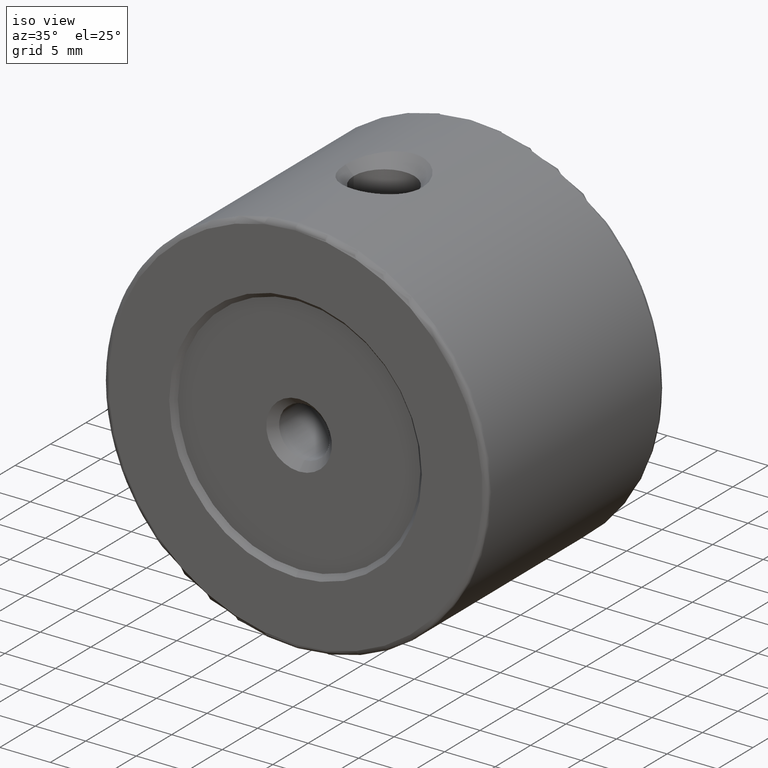
[diagram: clean part render]
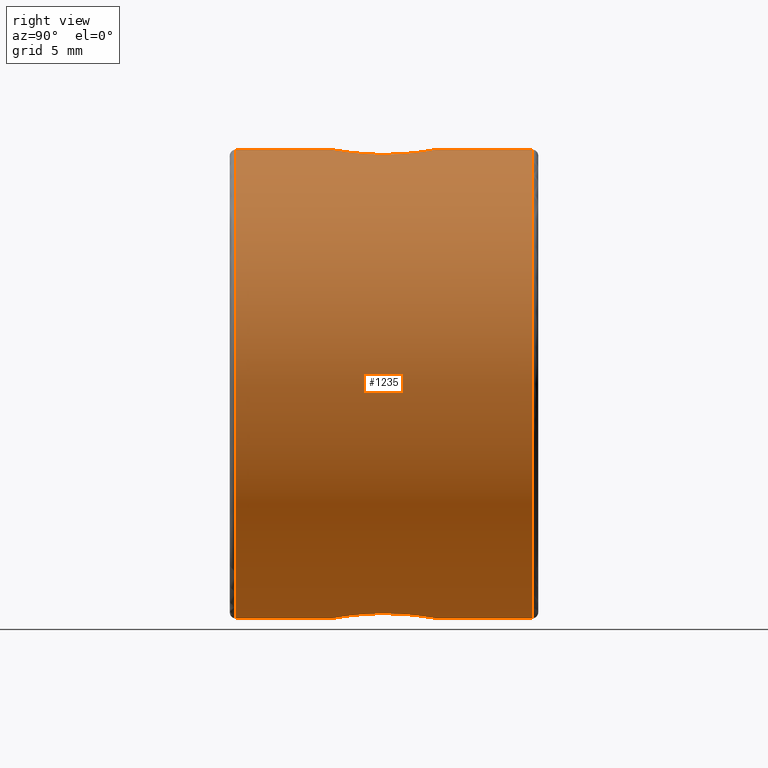
[diagram: tour spotlight — one face highlighted and labeled with its STEP entity id]
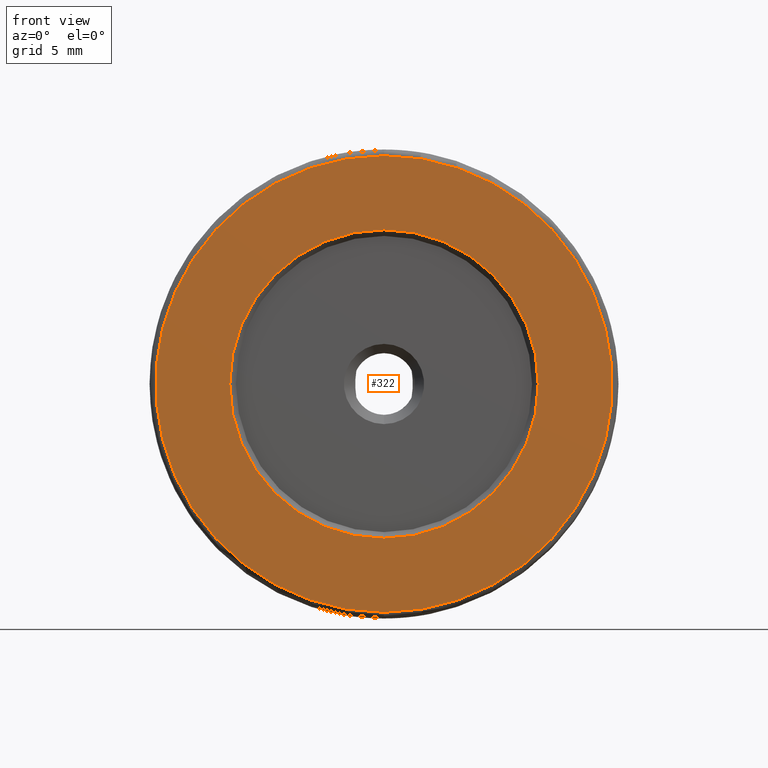
[diagram: tour spotlight — one face highlighted and labeled with its STEP entity id]
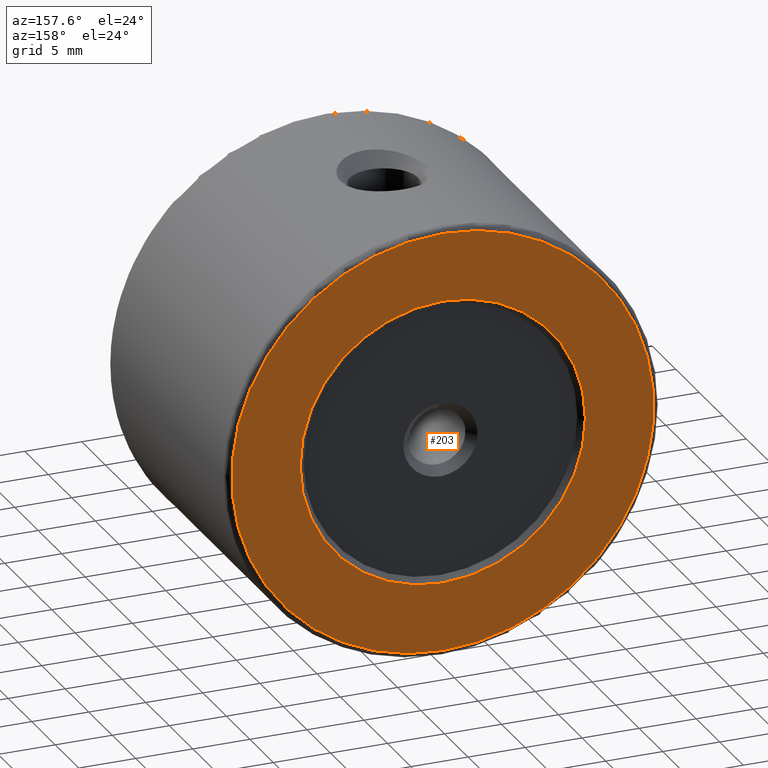
[diagram: tour spotlight — one face highlighted and labeled with its STEP entity id]
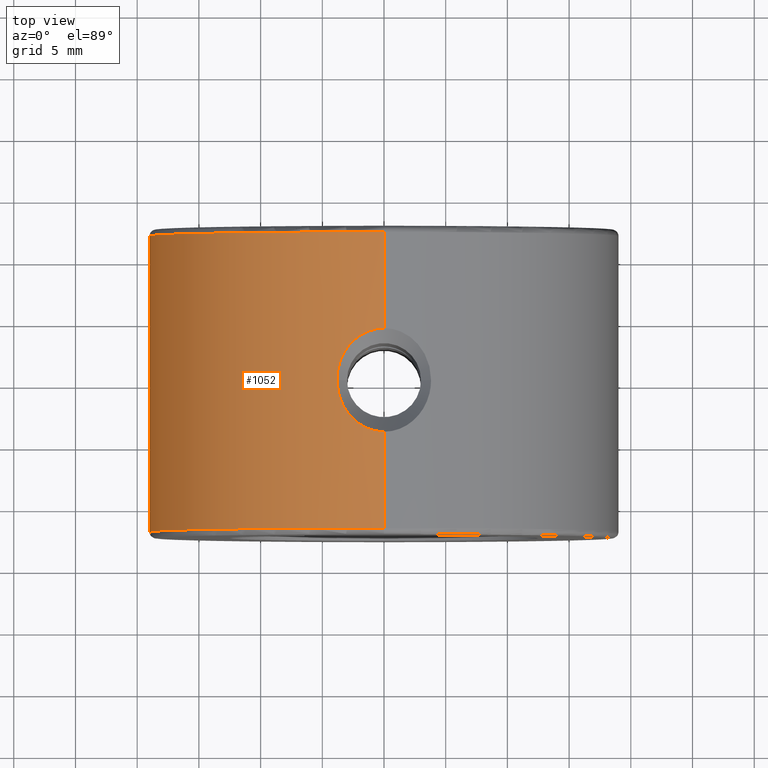
[diagram: tour spotlight — one face highlighted and labeled with its STEP entity id]
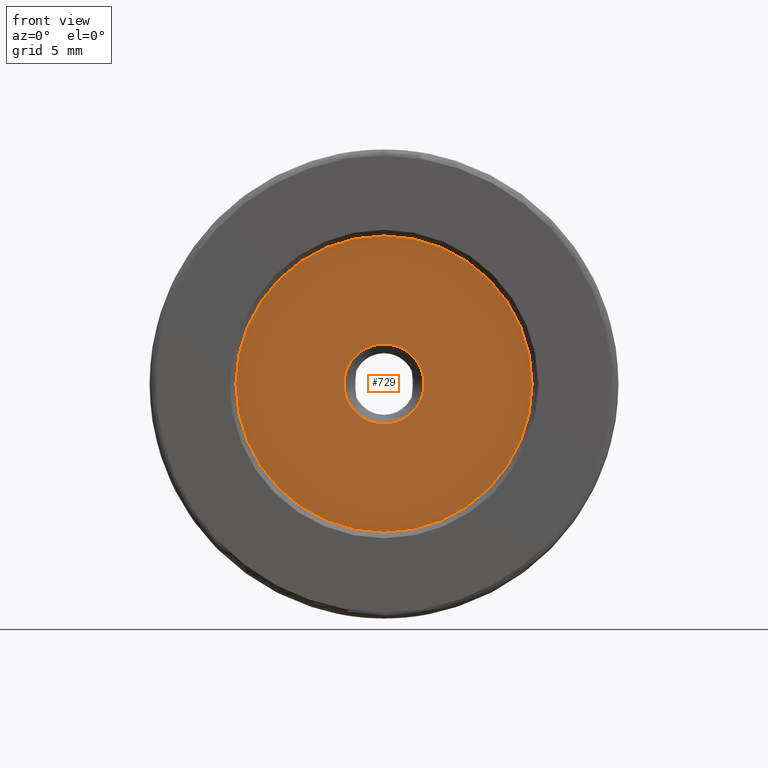
[diagram: tour spotlight — one face highlighted and labeled with its STEP entity id]
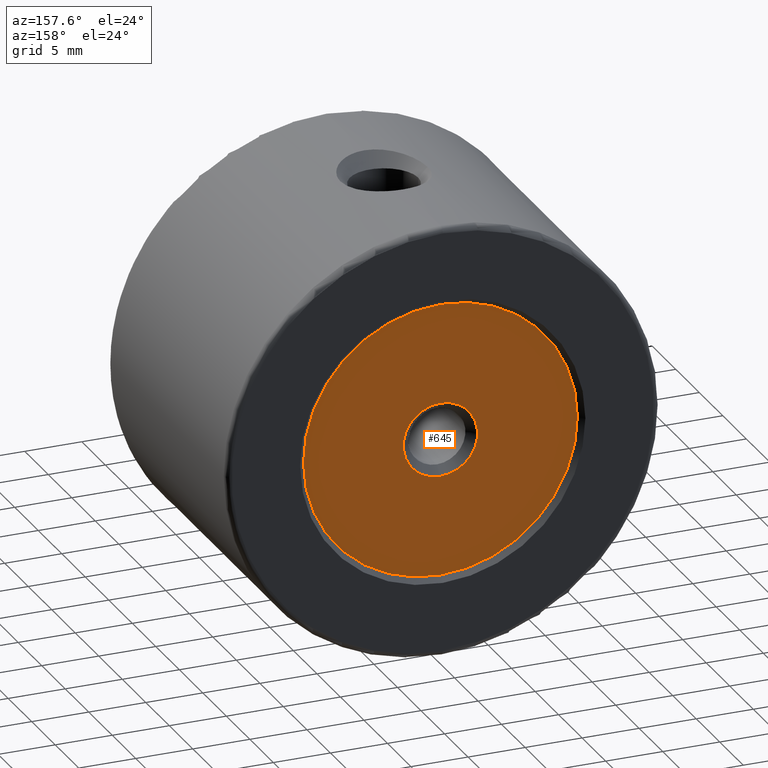
[diagram: tour spotlight — one face highlighted and labeled with its STEP entity id]
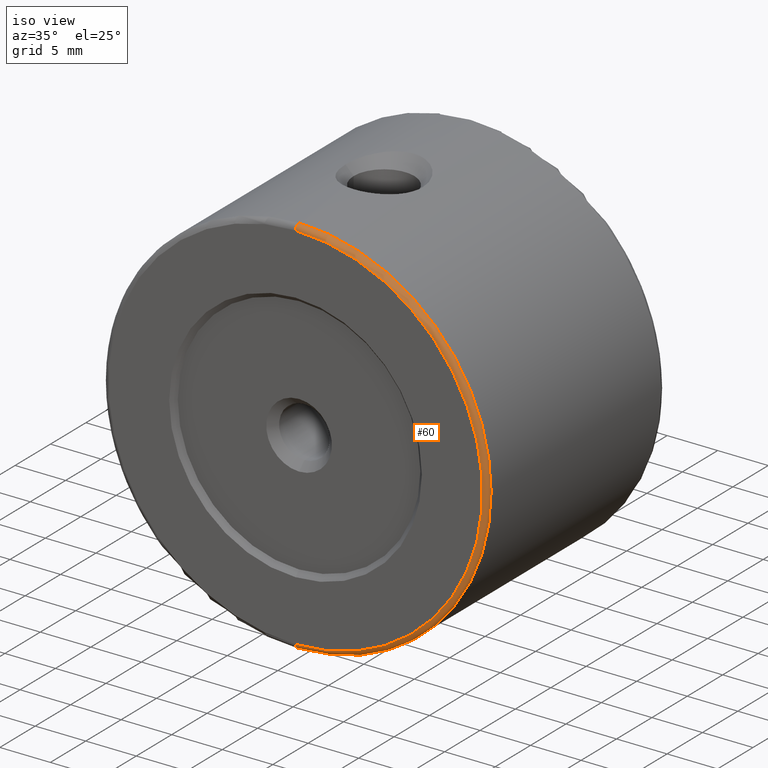
[diagram: tour spotlight — one face highlighted and labeled with its STEP entity id]
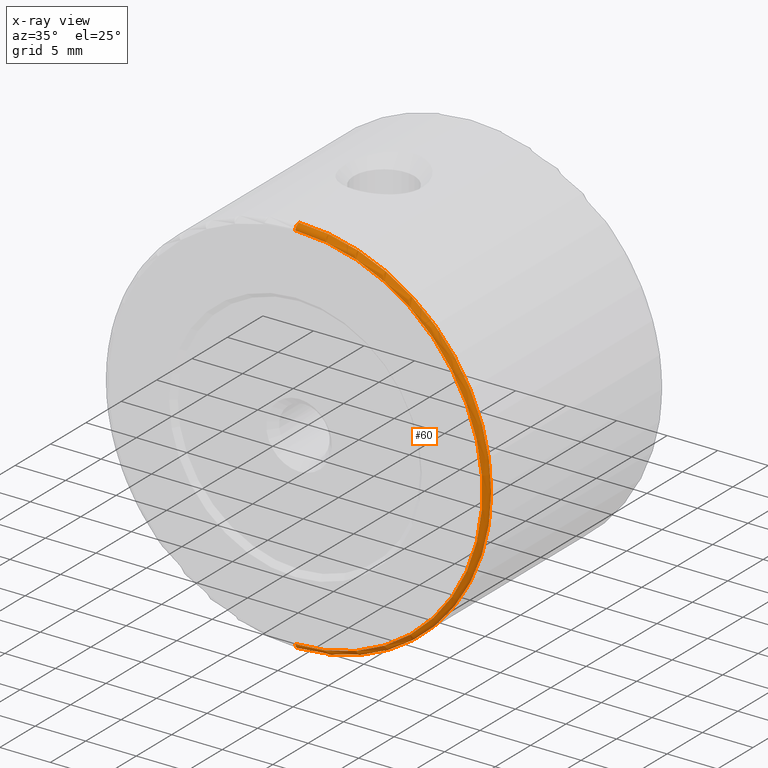
[diagram: x-ray of the same camera — body ghosted, this tour face saturated]
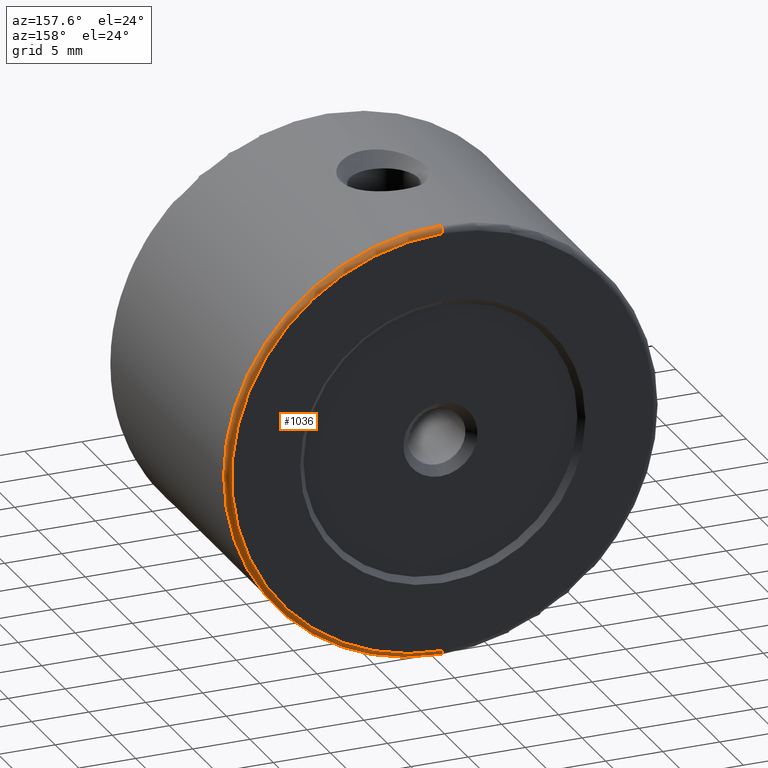
[diagram: tour spotlight — one face highlighted and labeled with its STEP entity id]
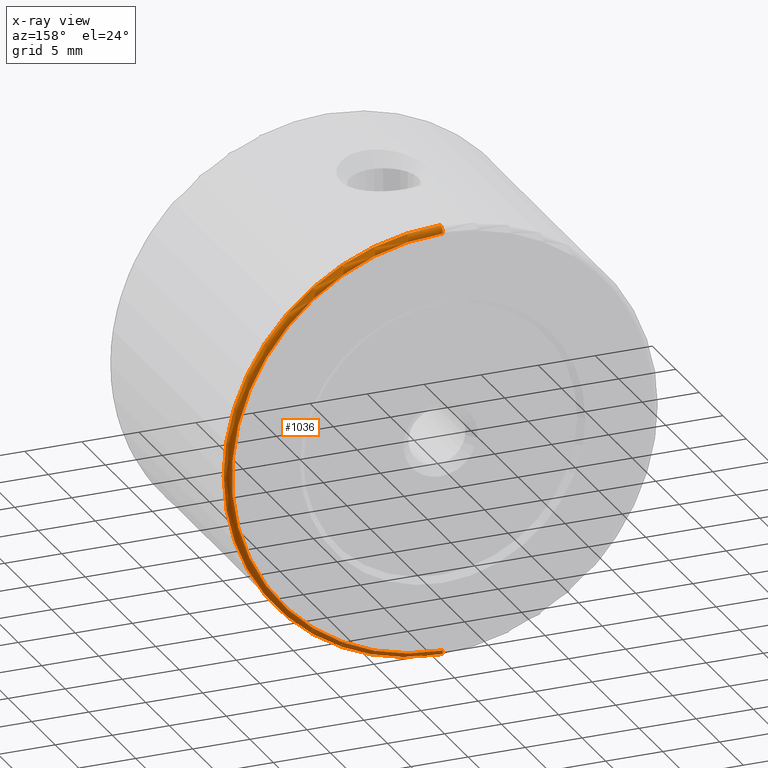
[diagram: x-ray of the same camera — body ghosted, this tour face saturated]
A machine part: a face-by-face anatomy tour. The part has 32 B-rep faces; the first image is the clean iso view, then the 8 largest visible faces are spotlighted one at a time (largest first), each with its STEP entity span.

Face 1 — right view, entity #1235. In plain terms, the highlighted cylindrical surface (partial cylindrical patch) has radius 19 mm, axis along (-0, -1, -0).
Definition (entity closure, byte-faithful):
#2 = CARTESIAN_POINT ( 'NONE',  ( -2.950931431205499911E-24, 4.200000000000001954, -19.00000000000000000 ) ) ;
#15 = CIRCLE ( 'NONE', #152, 19.00000000000000000 ) ;
#21 = FACE_OUTER_BOUND ( 'NONE', #573, .T. ) ;
#28 = CARTESIAN_POINT ( 'NONE',  ( 0.000000000000000000, 12.50000000000000000, -19.00000000000000000 ) ) ;
#40 = LINE ( 'NONE', #1194, #607 ) ;
#41 = CARTESIAN_POINT ( 'NONE',  ( 3.813384859176113029, 4.485534213115403575E-15, 18.61338485917610797 ) ) ;
#51 = CARTESIAN_POINT ( 'NONE',  ( 2.585923145783153743, 3.094283374167721590, -18.82401197115958880 ) ) ;
#80 = VERTEX_POINT ( 'NONE', #877 ) ;
#90 = CARTESIAN_POINT ( 'NONE',  ( 0.5297251651310073139, 4.168942290521563621, 18.99432574091556702 ) ) ;
#101 = DIRECTION ( 'NONE',  ( 0.000000000000000000, 0.000000000000000000, 1.000000000000000000 ) ) ;
#106 = CARTESIAN_POINT ( 'NONE',  ( 3.813384859176113029, 4.485534213115403575E-15, 18.61338485917610797 ) ) ;
#110 = CARTESIAN_POINT ( 'NONE',  ( 1.036936331074847395, -4.050975714897528945, -18.97339883011098038 ) ) ;
#124 = CARTESIAN_POINT ( 'NONE',  ( 3.813384859176113029, 5.419544116105100798E-15, -18.61338485917610797 ) ) ;
#135 = CARTESIAN_POINT ( 'NONE',  ( 0.000000000000000000, 12.00000000000000000, -19.00000000000000000 ) ) ;
#152 = AXIS2_PLACEMENT_3D ( 'NONE', #487, #389, #767 ) ;
#159 = CARTESIAN_POINT ( 'NONE',  ( 0.2643608118935061313, -4.200000000000002842, 19.00000000000000000 ) ) ;
#163 = CARTESIAN_POINT ( 'NONE',  ( 1.285606211179417757, 3.962995433463190942, -18.95795995441477899 ) ) ;
#165 = CARTESIAN_POINT ( 'NONE',  ( 3.083702293731566790, -2.479907480587627333, 18.74856035406340027 ) ) ;
#181 = CARTESIAN_POINT ( 'NONE',  ( 3.343440295387148264, 2.032195604094981345, 18.70398410746842188 ) ) ;
#184 = B_SPLINE_CURVE_WITH_KNOTS ( 'NONE', 3,
 ( #239, #159, #540, #824, #1189, #245, #1209, #720, #359, #1099, #165, #737, #1117, #1003, #930, #934, #1234, #106 ),
 .UNSPECIFIED., .F., .F.,
 ( 4, 2, 2, 2, 2, 2, 2, 2, 4 ),
 ( 0.003733624680294761987, 0.004520577988407363350, 0.005307531296519965580, 0.006094484604632566943, 0.006881437912745168306, 0.007668391220857769669, 0.008455344528970371032, 0.009242297837082972395, 0.01002925114519557376 ),
 .UNSPECIFIED. ) ;
#187 = B_SPLINE_CURVE_WITH_KNOTS ( 'NONE', 3,
 ( #856, #590, #580, #110, #1075, #221, #596, #403, #1156, #862, #960, #773, #1063, #977, #208, #870, #691, #1149 ),
 .UNSPECIFIED., .F., .F.,
 ( 4, 2, 2, 2, 2, 2, 2, 2, 4 ),
 ( 0.003733624680294759385, 0.004520577988407360748, 0.005307531296519962978, 0.006094484604632565208, 0.006881437912745166571, 0.007668391220857767934, 0.008455344528970371032, 0.009242297837082972395, 0.01002925114519557376 ),
 .UNSPECIFIED. ) ;
#208 = CARTESIAN_POINT ( 'NONE',  ( 3.701715367238866516, -1.039379487135364544, -18.63596989500373979 ) ) ;
#221 = CARTESIAN_POINT ( 'NONE',  ( 1.760538767150908734, -3.733767648488993007, -18.91973886890871981 ) ) ;
#239 = CARTESIAN_POINT ( 'NONE',  ( 2.327192720628906891E-15, -4.200000000000001954, 19.00000000000000000 ) ) ;
#243 = DIRECTION ( 'NONE',  ( -0.000000000000000000, -1.000000000000000000, -0.000000000000000000 ) ) ;
#245 = CARTESIAN_POINT ( 'NONE',  ( 1.760538767150910289, -3.733767648488993007, 18.91973886890871981 ) ) ;
#249 = CARTESIAN_POINT ( 'NONE',  ( 3.813384859176109476, 0.2637535071253301888, -18.61338485917610797 ) ) ;
#275 = CARTESIAN_POINT ( 'NONE',  ( 1.039267146753942050, 4.050236967509066588, 18.97326916744340153 ) ) ;
#285 = CARTESIAN_POINT ( 'NONE',  ( 0.000000000000000000, 12.50000000000000000, -19.00000000000000000 ) ) ;
#287 = CARTESIAN_POINT ( 'NONE',  ( 2.326828915429219399E-15, 4.200000000000001954, 19.00000000000000000 ) ) ;
#296 = CARTESIAN_POINT ( 'NONE',  ( 0.5297251651310057596, 4.168942290521564509, -18.99432574091556702 ) ) ;
#303 = LINE ( 'NONE', #28, #584 ) ;
#333 = CARTESIAN_POINT ( 'NONE',  ( 3.700672096661099975, 1.043841190092561932, -18.63617772534706063 ) ) ;
#346 = CARTESIAN_POINT ( 'NONE',  ( 3.790400455729970197, 0.5285259653674447833, -18.61813520637687702 ) ) ;
#359 = CARTESIAN_POINT ( 'NONE',  ( 2.588654675285174900, -3.091255685942118969, 18.82361915243649619 ) ) ;
#363 = DIRECTION ( 'NONE',  ( -0.000000000000000000, -1.000000000000000000, -0.000000000000000000 ) ) ;
#379 = CARTESIAN_POINT ( 'NONE',  ( 1.984799961420630865, 3.593673160863855021, 18.89717870099241637 ) ) ;
#389 = DIRECTION ( 'NONE',  ( -0.000000000000000000, -1.000000000000000000, -0.000000000000000000 ) ) ;
#395 = VERTEX_POINT ( 'NONE', #458 ) ;
#403 = CARTESIAN_POINT ( 'NONE',  ( 2.399224342550098310, -3.272267847369860760, -18.84907799735164957 ) ) ;
#408 = CARTESIAN_POINT ( 'NONE',  ( 0.000000000000000000, 12.50000000000000000, 0.000000000000000000 ) ) ;
#438 = CARTESIAN_POINT ( 'NONE',  ( 3.638011419842106990E-19, -4.200000000000001954, -19.00000000000000000 ) ) ;
#455 = ORIENTED_EDGE ( 'NONE', *, *, #837, .F. ) ;
#457 = CARTESIAN_POINT ( 'NONE',  ( 3.081823001859030686, 2.482585514589404685, 18.74886613868855534 ) ) ;
#458 = CARTESIAN_POINT ( 'NONE',  ( 2.326828918379970970E-15, 12.00000000000000000, 19.00000000000000000 ) ) ;
#464 = ORIENTED_EDGE ( 'NONE', *, *, #981, .F. ) ;
#473 = CARTESIAN_POINT ( 'NONE',  ( 2.395774678546571668, 3.275000908284720680, 18.84948427500687984 ) ) ;
#487 = CARTESIAN_POINT ( 'NONE',  ( 0.000000000000000000, 12.00000000000000000, 0.000000000000000000 ) ) ;
#494 = LINE ( 'NONE', #693, #863 ) ;
#523 = CARTESIAN_POINT ( 'NONE',  ( 3.343440295387147376, 2.032195604094981345, -18.70398410746841478 ) ) ;
#532 = CARTESIAN_POINT ( 'NONE',  ( 3.454920106575096739, 1.792778621141402740, -18.68346417454709041 ) ) ;
#533 = AXIS2_PLACEMENT_3D ( 'NONE', #408, #1093, #604 ) ;
#534 = VERTEX_POINT ( 'NONE', #41 ) ;
#539 = ORIENTED_EDGE ( 'NONE', *, *, #778, .F. ) ;
#540 = CARTESIAN_POINT ( 'NONE',  ( 0.5270742247394939461, -4.169362194566524238, 18.99440161949765837 ) ) ;
#550 = VECTOR ( 'NONE', #363, 1000.000000000000000 ) ;
#558 = CARTESIAN_POINT ( 'NONE',  ( 1.285606211179420866, 3.962995433463188277, 18.95795995441477544 ) ) ;
#563 = ORIENTED_EDGE ( 'NONE', *, *, #649, .F. ) ;
#564 = CARTESIAN_POINT ( 'NONE',  ( 3.790400455729969753, 0.5285259653674447833, 18.61813520637686992 ) ) ;
#566 = CARTESIAN_POINT ( 'NONE',  ( 0.000000000000000000, -12.00000000000000000, 0.000000000000000000 ) ) ;
#573 = EDGE_LOOP ( 'NONE', ( #851, #1005, #539, #563, #840, #946, #455, #1219, #1011, #464 ) ) ;
#578 = CARTESIAN_POINT ( 'NONE',  ( 1.039267146753940940, 4.050236967509067476, -18.97326916744340863 ) ) ;
#580 = CARTESIAN_POINT ( 'NONE',  ( 0.5270742247394912816, -4.169362194566525126, -18.99440161949765837 ) ) ;
#584 = VECTOR ( 'NONE', #597, 1000.000000000000000 ) ;
#590 = CARTESIAN_POINT ( 'NONE',  ( 0.2643608118935036888, -4.200000000000005507, -19.00000000000000000 ) ) ;
#596 = CARTESIAN_POINT ( 'NONE',  ( 1.982410025684199217, -3.595584354445326536, -18.89746198001725119 ) ) ;
#597 = DIRECTION ( 'NONE',  ( -0.000000000000000000, -1.000000000000000000, -0.000000000000000000 ) ) ;
#604 = DIRECTION ( 'NONE',  ( 0.000000000000000000, 0.000000000000000000, -1.000000000000000000 ) ) ;
#607 = VECTOR ( 'NONE', #243, 1000.000000000000000 ) ;
#611 = CARTESIAN_POINT ( 'NONE',  ( 2.395774678546570335, 3.275000908284722456, -18.84948427500687984 ) ) ;
#619 = VERTEX_POINT ( 'NONE', #438 ) ;
#624 = VERTEX_POINT ( 'NONE', #1092 ) ;
#649 = EDGE_CURVE ( 'NONE', #624, #534, #184, .T. ) ;
#661 = CARTESIAN_POINT ( 'NONE',  ( 2.585923145783155519, 3.094283374167720702, 18.82401197115958880 ) ) ;
#666 = LINE ( 'NONE', #285, #550 ) ;
#682 = CARTESIAN_POINT ( 'NONE',  ( -2.950931431205499911E-24, 4.200000000000001954, -19.00000000000000000 ) ) ;
#691 = CARTESIAN_POINT ( 'NONE',  ( 3.813384859176109920, -0.2633610886248726191, -18.61338485917610797 ) ) ;
#693 = CARTESIAN_POINT ( 'NONE',  ( 2.326828918379970970E-15, 12.50000000000000000, 19.00000000000000000 ) ) ;
#713 = CIRCLE ( 'NONE', #1130, 19.00000000000000000 ) ;
#720 = CARTESIAN_POINT ( 'NONE',  ( 2.399224342550100086, -3.272267847369859428, 18.84907799735164957 ) ) ;
#737 = CARTESIAN_POINT ( 'NONE',  ( 3.346208697011582522, -2.026862408214944011, 18.70349225525456660 ) ) ;
#739 = VERTEX_POINT ( 'NONE', #2 ) ;
#746 = CARTESIAN_POINT ( 'NONE',  ( 1.761682783616111525, 3.733302896690662731, 18.91965916007284676 ) ) ;
#754 = CARTESIAN_POINT ( 'NONE',  ( 0.2628673456869811131, 4.200000000000004619, 19.00000000000000711 ) ) ;
#760 = CARTESIAN_POINT ( 'NONE',  ( 3.813384859176113029, 4.485534213115403575E-15, 18.61338485917610797 ) ) ;
#767 = DIRECTION ( 'NONE',  ( 0.000000000000000000, 0.000000000000000000, 1.000000000000000000 ) ) ;
#773 = CARTESIAN_POINT ( 'NONE',  ( 3.346208697011582522, -2.026862408214944899, -18.70349225525456660 ) ) ;
#778 = EDGE_CURVE ( 'NONE', #534, #857, #1136, .T. ) ;
#796 = EDGE_CURVE ( 'NONE', #395, #857, #494, .T. ) ;
#801 = VERTEX_POINT ( 'NONE', #124 ) ;
#824 = CARTESIAN_POINT ( 'NONE',  ( 1.036936331074850282, -4.050975714897528945, 18.97339883011098038 ) ) ;
#837 = EDGE_CURVE ( 'NONE', #619, #896, #303, .T. ) ;
#838 = CARTESIAN_POINT ( 'NONE',  ( 2.931083331247327894, 2.695418981420047988, 18.77336346293708047 ) ) ;
#840 = ORIENTED_EDGE ( 'NONE', *, *, #952, .T. ) ;
#851 = ORIENTED_EDGE ( 'NONE', *, *, #915, .T. ) ;
#856 = CARTESIAN_POINT ( 'NONE',  ( 3.638011419842106990E-19, -4.200000000000001954, -19.00000000000000000 ) ) ;
#857 = VERTEX_POINT ( 'NONE', #874 ) ;
#862 = CARTESIAN_POINT ( 'NONE',  ( 2.930081690025328367, -2.696446970008287369, -18.77350239869024406 ) ) ;
#863 = VECTOR ( 'NONE', #1070, 1000.000000000000000 ) ;
#870 = CARTESIAN_POINT ( 'NONE',  ( 3.790936155022186504, -0.5238923155904026130, -18.61802550369087328 ) ) ;
#874 = CARTESIAN_POINT ( 'NONE',  ( 2.326828915429219399E-15, 4.200000000000001954, 19.00000000000000000 ) ) ;
#877 = CARTESIAN_POINT ( 'NONE',  ( 2.326828918379970970E-15, -12.00000000000000000, 19.00000000000000000 ) ) ;
#879 = CARTESIAN_POINT ( 'NONE',  ( 3.813384859176113029, 5.419544116105100798E-15, -18.61338485917610797 ) ) ;
#896 = VERTEX_POINT ( 'NONE', #1158 ) ;
#902 = CARTESIAN_POINT ( 'NONE',  ( 1.984799961420629977, 3.593673160863856797, -18.89717870099241992 ) ) ;
#914 = VERTEX_POINT ( 'NONE', #135 ) ;
#915 = EDGE_CURVE ( 'NONE', #914, #395, #15, .T. ) ;
#916 = CARTESIAN_POINT ( 'NONE',  ( 1.761682783616107750, 3.733302896690664952, -18.91965916007284321 ) ) ;
#930 = CARTESIAN_POINT ( 'NONE',  ( 3.701715367238866516, -1.039379487135364544, 18.63596989500373979 ) ) ;
#934 = CARTESIAN_POINT ( 'NONE',  ( 3.790936155022186504, -0.5238923155904023909, 18.61802550369087328 ) ) ;
#937 = CARTESIAN_POINT ( 'NONE',  ( 0.2628673456869778935, 4.200000000000003730, -19.00000000000000355 ) ) ;
#946 = ORIENTED_EDGE ( 'NONE', *, *, #1116, .T. ) ;
#952 = EDGE_CURVE ( 'NONE', #624, #80, #40, .T. ) ;
#960 = CARTESIAN_POINT ( 'NONE',  ( 3.083702293731565458, -2.479907480587628665, -18.74856035406340027 ) ) ;
#977 = CARTESIAN_POINT ( 'NONE',  ( 3.633941105795898352, -1.296681371469082800, -18.64946851498529767 ) ) ;
#981 = EDGE_CURVE ( 'NONE', #914, #739, #666, .T. ) ;
#1003 = CARTESIAN_POINT ( 'NONE',  ( 3.633941105795898352, -1.296681371469082800, 18.64946851498529767 ) ) ;
#1005 = ORIENTED_EDGE ( 'NONE', *, *, #796, .T. ) ;
#1011 = ORIENTED_EDGE ( 'NONE', *, *, #1038, .T. ) ;
#1012 = CARTESIAN_POINT ( 'NONE',  ( 3.081823001859029798, 2.482585514589403797, -18.74886613868855889 ) ) ;
#1013 = EDGE_CURVE ( 'NONE', #619, #801, #187, .T. ) ;
#1038 = EDGE_CURVE ( 'NONE', #801, #739, #1201, .T. ) ;
#1040 = CARTESIAN_POINT ( 'NONE',  ( 3.454920106575097627, 1.792778621141403850, 18.68346417454709041 ) ) ;
#1063 = CARTESIAN_POINT ( 'NONE',  ( 3.455971796308063837, -1.790118321469071461, -18.68326691975855880 ) ) ;
#1070 = DIRECTION ( 'NONE',  ( -0.000000000000000000, -1.000000000000000000, -0.000000000000000000 ) ) ;
#1075 = CARTESIAN_POINT ( 'NONE',  ( 1.288712811842474215, -3.961583432246448933, -18.95772230271689551 ) ) ;
#1084 = CYLINDRICAL_SURFACE ( 'NONE', #533, 19.00000000000000000 ) ;
#1087 = CARTESIAN_POINT ( 'NONE',  ( 2.931083331247326118, 2.695418981420049320, -18.77336346293708047 ) ) ;
#1092 = CARTESIAN_POINT ( 'NONE',  ( 2.327192720628906891E-15, -4.200000000000001954, 19.00000000000000000 ) ) ;
#1093 = DIRECTION ( 'NONE',  ( -0.000000000000000000, -1.000000000000000000, -0.000000000000000000 ) ) ;
#1099 = CARTESIAN_POINT ( 'NONE',  ( 2.930081690025330143, -2.696446970008286925, 18.77350239869024406 ) ) ;
#1116 = EDGE_CURVE ( 'NONE', #80, #896, #713, .T. ) ;
#1117 = CARTESIAN_POINT ( 'NONE',  ( 3.455971796308064281, -1.790118321469071239, 18.68326691975855880 ) ) ;
#1120 = DIRECTION ( 'NONE',  ( 0.000000000000000000, 1.000000000000000000, 0.000000000000000000 ) ) ;
#1130 = AXIS2_PLACEMENT_3D ( 'NONE', #566, #1120, #101 ) ;
#1132 = CARTESIAN_POINT ( 'NONE',  ( 3.700672096661099975, 1.043841190092562154, 18.63617772534706063 ) ) ;
#1136 = B_SPLINE_CURVE_WITH_KNOTS ( 'NONE', 3,
 ( #760, #1143, #564, #1132, #1221, #1040, #181, #457, #838, #661, #473, #379, #746, #558, #275, #90, #754, #287 ),
 .UNSPECIFIED., .F., .F.,
 ( 4, 2, 2, 2, 2, 2, 2, 2, 4 ),
 ( 0.01002925114519557376, 0.01081737704504791633, 0.01160550294490025891, 0.01239362884475260149, 0.01318175474460494580, 0.01396988064445728837, 0.01475800654430963095, 0.01554613244416197179, 0.01633425834401431437 ),
 .UNSPECIFIED. ) ;
#1143 = CARTESIAN_POINT ( 'NONE',  ( 3.813384859176109920, 0.2637535071253300223, 18.61338485917610797 ) ) ;
#1149 = CARTESIAN_POINT ( 'NONE',  ( 3.813384859176113029, 5.419544116105100798E-15, -18.61338485917610797 ) ) ;
#1156 = CARTESIAN_POINT ( 'NONE',  ( 2.588654675285172235, -3.091255685942120301, -18.82361915243649619 ) ) ;
#1158 = CARTESIAN_POINT ( 'NONE',  ( 0.000000000000000000, -12.00000000000000000, -19.00000000000000000 ) ) ;
#1189 = CARTESIAN_POINT ( 'NONE',  ( 1.288712811842475769, -3.961583432246448933, 18.95772230271689551 ) ) ;
#1194 = CARTESIAN_POINT ( 'NONE',  ( 2.326828918379970970E-15, 12.50000000000000000, 19.00000000000000000 ) ) ;
#1200 = CARTESIAN_POINT ( 'NONE',  ( 3.634000299642567988, 1.296771448311714092, -18.64945973283406033 ) ) ;
#1201 = B_SPLINE_CURVE_WITH_KNOTS ( 'NONE', 3,
 ( #879, #249, #346, #333, #1200, #532, #523, #1012, #1087, #51, #611, #902, #916, #163, #578, #296, #937, #682 ),
 .UNSPECIFIED., .F., .F.,
 ( 4, 2, 2, 2, 2, 2, 2, 2, 4 ),
 ( 0.01002925114519557376, 0.01081737704504791633, 0.01160550294490025891, 0.01239362884475260149, 0.01318175474460494580, 0.01396988064445728837, 0.01475800654430963095, 0.01554613244416197526, 0.01633425834401431784 ),
 .UNSPECIFIED. ) ;
#1209 = CARTESIAN_POINT ( 'NONE',  ( 1.982410025684199884, -3.595584354445323871, 18.89746198001724409 ) ) ;
#1219 = ORIENTED_EDGE ( 'NONE', *, *, #1013, .T. ) ;
#1221 = CARTESIAN_POINT ( 'NONE',  ( 3.634000299642567988, 1.296771448311714314, 18.64945973283406033 ) ) ;
#1234 = CARTESIAN_POINT ( 'NONE',  ( 3.813384859176109920, -0.2633610886248725080, 18.61338485917610797 ) ) ;
#1235 = ADVANCED_FACE ( 'NONE', ( #21 ), #1084, .T. ) ;

Face 2 — front view, entity #322. In plain terms, the highlighted planar face has unit normal (0, 1, 0).
Definition (entity closure, byte-faithful):
#31 = DIRECTION ( 'NONE',  ( 0.000000000000000000, 0.000000000000000000, 1.000000000000000000 ) ) ;
#56 = CARTESIAN_POINT ( 'NONE',  ( -1.530808498934191521E-15, -12.50000000000000000, -12.50000000000000000 ) ) ;
#57 = DIRECTION ( 'NONE',  ( 0.000000000000000000, 0.000000000000000000, 1.000000000000000000 ) ) ;
#61 = VERTEX_POINT ( 'NONE', #279 ) ;
#83 = CARTESIAN_POINT ( 'NONE',  ( 0.000000000000000000, -12.50000000000000000, 18.50000000000000000 ) ) ;
#125 = CARTESIAN_POINT ( 'NONE',  ( 0.000000000000000000, -12.50000000000000000, 0.000000000000000000 ) ) ;
#140 = EDGE_CURVE ( 'NONE', #901, #568, #1184, .T. ) ;
#151 = AXIS2_PLACEMENT_3D ( 'NONE', #622, #1004, #433 ) ;
#246 = PLANE ( 'NONE',  #151 ) ;
#252 = EDGE_LOOP ( 'NONE', ( #576, #367 ) ) ;
#258 = CIRCLE ( 'NONE', #716, 18.50000000000000000 ) ;
#265 = EDGE_CURVE ( 'NONE', #568, #901, #782, .T. ) ;
#279 = CARTESIAN_POINT ( 'NONE',  ( 2.296212748401287183E-15, -12.50000000000000000, -18.50000000000000000 ) ) ;
#308 = CARTESIAN_POINT ( 'NONE',  ( 0.000000000000000000, -12.50000000000000000, 12.50000000000000000 ) ) ;
#320 = DIRECTION ( 'NONE',  ( -0.000000000000000000, 1.000000000000000000, -0.000000000000000000 ) ) ;
#322 = ADVANCED_FACE ( 'NONE', ( #721, #1100 ), #246, .F. ) ;
#367 = ORIENTED_EDGE ( 'NONE', *, *, #265, .T. ) ;
#399 = DIRECTION ( 'NONE',  ( -0.000000000000000000, -1.000000000000000000, -0.000000000000000000 ) ) ;
#431 = VERTEX_POINT ( 'NONE', #83 ) ;
#433 = DIRECTION ( 'NONE',  ( 0.000000000000000000, -0.000000000000000000, 1.000000000000000000 ) ) ;
#503 = CARTESIAN_POINT ( 'NONE',  ( 0.000000000000000000, -12.50000000000000000, 0.000000000000000000 ) ) ;
#524 = EDGE_LOOP ( 'NONE', ( #1157, #1021 ) ) ;
#568 = VERTEX_POINT ( 'NONE', #56 ) ;
#576 = ORIENTED_EDGE ( 'NONE', *, *, #140, .T. ) ;
#594 = DIRECTION ( 'NONE',  ( 0.000000000000000000, 0.000000000000000000, 1.000000000000000000 ) ) ;
#622 = CARTESIAN_POINT ( 'NONE',  ( 0.000000000000000000, -12.50000000000000000, 0.000000000000000000 ) ) ;
#716 = AXIS2_PLACEMENT_3D ( 'NONE', #125, #1073, #594 ) ;
#721 = FACE_BOUND ( 'NONE', #252, .T. ) ;
#733 = AXIS2_PLACEMENT_3D ( 'NONE', #899, #1211, #57 ) ;
#777 = DIRECTION ( 'NONE',  ( 0.000000000000000000, 0.000000000000000000, 1.000000000000000000 ) ) ;
#782 = CIRCLE ( 'NONE', #733, 12.50000000000000000 ) ;
#899 = CARTESIAN_POINT ( 'NONE',  ( 0.000000000000000000, -12.50000000000000000, 0.000000000000000000 ) ) ;
#901 = VERTEX_POINT ( 'NONE', #308 ) ;
#966 = CIRCLE ( 'NONE', #1212, 18.50000000000000000 ) ;
#975 = CARTESIAN_POINT ( 'NONE',  ( 0.000000000000000000, -12.50000000000000000, 0.000000000000000000 ) ) ;
#1004 = DIRECTION ( 'NONE',  ( 0.000000000000000000, 1.000000000000000000, 0.000000000000000000 ) ) ;
#1021 = ORIENTED_EDGE ( 'NONE', *, *, #1190, .T. ) ;
#1073 = DIRECTION ( 'NONE',  ( -0.000000000000000000, -1.000000000000000000, -0.000000000000000000 ) ) ;
#1100 = FACE_OUTER_BOUND ( 'NONE', #524, .T. ) ;
#1157 = ORIENTED_EDGE ( 'NONE', *, *, #1177, .T. ) ;
#1177 = EDGE_CURVE ( 'NONE', #431, #61, #258, .T. ) ;
#1184 = CIRCLE ( 'NONE', #1227, 12.50000000000000000 ) ;
#1190 = EDGE_CURVE ( 'NONE', #61, #431, #966, .T. ) ;
#1211 = DIRECTION ( 'NONE',  ( -0.000000000000000000, 1.000000000000000000, -0.000000000000000000 ) ) ;
#1212 = AXIS2_PLACEMENT_3D ( 'NONE', #975, #399, #777 ) ;
#1227 = AXIS2_PLACEMENT_3D ( 'NONE', #503, #320, #31 ) ;

Face 3 — auxiliary view, entity #203. In plain terms, the highlighted planar face has unit normal (0, 1, 0).
Definition (entity closure, byte-faithful):
#44 = ORIENTED_EDGE ( 'NONE', *, *, #498, .F. ) ;
#50 = VERTEX_POINT ( 'NONE', #89 ) ;
#54 = EDGE_LOOP ( 'NONE', ( #885, #422 ) ) ;
#75 = CARTESIAN_POINT ( 'NONE',  ( 0.000000000000000000, 12.50000000000000000, 12.50000000000000000 ) ) ;
#89 = CARTESIAN_POINT ( 'NONE',  ( 2.296212748401287183E-15, 12.50000000000000000, -18.50000000000000000 ) ) ;
#155 = CARTESIAN_POINT ( 'NONE',  ( 0.000000000000000000, 12.50000000000000000, 0.000000000000000000 ) ) ;
#202 = DIRECTION ( 'NONE',  ( 0.000000000000000000, 1.000000000000000000, 0.000000000000000000 ) ) ;
#203 = ADVANCED_FACE ( 'NONE', ( #254, #727 ), #1205, .T. ) ;
#217 = DIRECTION ( 'NONE',  ( 0.000000000000000000, 1.000000000000000000, 0.000000000000000000 ) ) ;
#228 = CARTESIAN_POINT ( 'NONE',  ( 0.000000000000000000, 12.50000000000000000, 0.000000000000000000 ) ) ;
#254 = FACE_BOUND ( 'NONE', #718, .T. ) ;
#280 = VERTEX_POINT ( 'NONE', #893 ) ;
#373 = AXIS2_PLACEMENT_3D ( 'NONE', #570, #654, #1217 ) ;
#393 = AXIS2_PLACEMENT_3D ( 'NONE', #228, #217, #1151 ) ;
#413 = DIRECTION ( 'NONE',  ( 0.000000000000000000, 0.000000000000000000, 1.000000000000000000 ) ) ;
#422 = ORIENTED_EDGE ( 'NONE', *, *, #860, .T. ) ;
#486 = VERTEX_POINT ( 'NONE', #585 ) ;
#498 = EDGE_CURVE ( 'NONE', #280, #648, #1129, .T. ) ;
#506 = DIRECTION ( 'NONE',  ( 0.000000000000000000, 1.000000000000000000, 0.000000000000000000 ) ) ;
#570 = CARTESIAN_POINT ( 'NONE',  ( 0.000000000000000000, 12.50000000000000000, 0.000000000000000000 ) ) ;
#585 = CARTESIAN_POINT ( 'NONE',  ( 0.000000000000000000, 12.50000000000000000, 18.50000000000000000 ) ) ;
#648 = VERTEX_POINT ( 'NONE', #75 ) ;
#650 = CIRCLE ( 'NONE', #393, 18.50000000000000000 ) ;
#654 = DIRECTION ( 'NONE',  ( 0.000000000000000000, 1.000000000000000000, 0.000000000000000000 ) ) ;
#671 = CIRCLE ( 'NONE', #1186, 18.50000000000000000 ) ;
#686 = EDGE_CURVE ( 'NONE', #648, #280, #828, .T. ) ;
#692 = AXIS2_PLACEMENT_3D ( 'NONE', #155, #912, #1218 ) ;
#718 = EDGE_LOOP ( 'NONE', ( #941, #44 ) ) ;
#727 = FACE_OUTER_BOUND ( 'NONE', #54, .T. ) ;
#814 = EDGE_CURVE ( 'NONE', #486, #50, #650, .T. ) ;
#828 = CIRCLE ( 'NONE', #373, 12.50000000000000000 ) ;
#860 = EDGE_CURVE ( 'NONE', #50, #486, #671, .T. ) ;
#885 = ORIENTED_EDGE ( 'NONE', *, *, #814, .T. ) ;
#893 = CARTESIAN_POINT ( 'NONE',  ( 1.530808498934191521E-15, 12.50000000000000000, -12.50000000000000000 ) ) ;
#912 = DIRECTION ( 'NONE',  ( 0.000000000000000000, 1.000000000000000000, 0.000000000000000000 ) ) ;
#941 = ORIENTED_EDGE ( 'NONE', *, *, #686, .F. ) ;
#954 = DIRECTION ( 'NONE',  ( 0.000000000000000000, 0.000000000000000000, 1.000000000000000000 ) ) ;
#978 = CARTESIAN_POINT ( 'NONE',  ( 0.000000000000000000, 12.50000000000000000, 0.000000000000000000 ) ) ;
#1077 = CARTESIAN_POINT ( 'NONE',  ( 0.000000000000000000, 12.50000000000000000, 0.000000000000000000 ) ) ;
#1091 = AXIS2_PLACEMENT_3D ( 'NONE', #1077, #506, #413 ) ;
#1129 = CIRCLE ( 'NONE', #1091, 12.50000000000000000 ) ;
#1151 = DIRECTION ( 'NONE',  ( 0.000000000000000000, 0.000000000000000000, 1.000000000000000000 ) ) ;
#1186 = AXIS2_PLACEMENT_3D ( 'NONE', #978, #202, #954 ) ;
#1205 = PLANE ( 'NONE',  #692 ) ;
#1217 = DIRECTION ( 'NONE',  ( 0.000000000000000000, 0.000000000000000000, 1.000000000000000000 ) ) ;
#1218 = DIRECTION ( 'NONE',  ( 0.000000000000000000, -0.000000000000000000, 1.000000000000000000 ) ) ;

Face 4 — top view, entity #1052. In plain terms, the highlighted cylindrical surface (partial cylindrical patch) has radius 19 mm, axis along (-0, -1, -0).
Definition (entity closure, byte-faithful):
#2 = CARTESIAN_POINT ( 'NONE',  ( -2.950931431205499911E-24, 4.200000000000001954, -19.00000000000000000 ) ) ;
#8 = CARTESIAN_POINT ( 'NONE',  ( -1.034471794619009177, -4.051750067448240067, -18.97353479106898178 ) ) ;
#10 = CARTESIAN_POINT ( 'NONE',  ( -3.344108620708797108, 2.030931672235442687, 18.70386606416886721 ) ) ;
#26 = B_SPLINE_CURVE_WITH_KNOTS ( 'NONE', 3,
 ( #289, #352, #72, #1114, #639, #756, #1020, #831, #956, #183, #771, #114, #848, #949, #385, #1237, #491, #664 ),
 .UNSPECIFIED., .F., .F.,
 ( 4, 2, 2, 2, 2, 2, 2, 2, 4 ),
 ( 0.02262406464777515919, 0.02341192012650424384, 0.02419977560523332502, 0.02498763108396240967, 0.02577548656269149085, 0.02656334204142057551, 0.02735119752014966016, 0.02813905299887874134, 0.02892690847760782599 ),
 .UNSPECIFIED. ) ;
#28 = CARTESIAN_POINT ( 'NONE',  ( 0.000000000000000000, 12.50000000000000000, -19.00000000000000000 ) ) ;
#40 = LINE ( 'NONE', #1194, #607 ) ;
#72 = CARTESIAN_POINT ( 'NONE',  ( -3.791022244710912759, -0.5235990304678291851, 18.61800844722787218 ) ) ;
#80 = VERTEX_POINT ( 'NONE', #877 ) ;
#93 = DIRECTION ( 'NONE',  ( -0.000000000000000000, -1.000000000000000000, -0.000000000000000000 ) ) ;
#99 = CARTESIAN_POINT ( 'NONE',  ( -3.701422683337228126, -1.040865931549333823, -18.63602850180846815 ) ) ;
#108 = CARTESIAN_POINT ( 'NONE',  ( -2.396504477183472481, 3.274477364089785514, 18.84940390388220877 ) ) ;
#114 = CARTESIAN_POINT ( 'NONE',  ( -1.978213162913091905, -3.598261624338995102, 18.89789005104885078 ) ) ;
#128 = CARTESIAN_POINT ( 'NONE',  ( -3.455099763379185340, -1.792132752334157475, -18.68342862309454233 ) ) ;
#135 = CARTESIAN_POINT ( 'NONE',  ( 0.000000000000000000, 12.00000000000000000, -19.00000000000000000 ) ) ;
#141 = VERTEX_POINT ( 'NONE', #1079 ) ;
#145 = CARTESIAN_POINT ( 'NONE',  ( -2.585672090060412209, 3.094511270472101838, -18.82404494292661568 ) ) ;
#158 = ORIENTED_EDGE ( 'NONE', *, *, #981, .T. ) ;
#183 = CARTESIAN_POINT ( 'NONE',  ( -2.585169056324029047, -3.094836437859383782, 18.82410281578632194 ) ) ;
#188 = CARTESIAN_POINT ( 'NONE',  ( -3.791022244710913203, -0.5235990304678256324, -18.61800844722787218 ) ) ;
#199 = CARTESIAN_POINT ( 'NONE',  ( -2.585672090060411321, 3.094511270472102282, 18.82404494292661212 ) ) ;
#205 = CYLINDRICAL_SURFACE ( 'NONE', #923, 19.00000000000000000 ) ;
#219 = CARTESIAN_POINT ( 'NONE',  ( -3.700693549838209861, 1.043815984394493857, 18.63617353748261607 ) ) ;
#224 = CARTESIAN_POINT ( 'NONE',  ( -3.790479497199425563, 0.5279739146898225766, 18.61811918670337462 ) ) ;
#243 = DIRECTION ( 'NONE',  ( -0.000000000000000000, -1.000000000000000000, -0.000000000000000000 ) ) ;
#266 = CARTESIAN_POINT ( 'NONE',  ( -3.790479497199425563, 0.5279739146898230207, -18.61811918670337818 ) ) ;
#268 = CARTESIAN_POINT ( 'NONE',  ( 2.326828915429219399E-15, 4.200000000000001954, 19.00000000000000000 ) ) ;
#269 = CARTESIAN_POINT ( 'NONE',  ( -1.285786169902296550, 3.962714607404917100, -18.95791803370085304 ) ) ;
#270 = EDGE_CURVE ( 'NONE', #739, #1125, #951, .T. ) ;
#285 = CARTESIAN_POINT ( 'NONE',  ( 0.000000000000000000, 12.50000000000000000, -19.00000000000000000 ) ) ;
#289 = CARTESIAN_POINT ( 'NONE',  ( -3.813384859176109476, -1.658580053227177321E-25, 18.61338485917610797 ) ) ;
#303 = LINE ( 'NONE', #28, #584 ) ;
#305 = CARTESIAN_POINT ( 'NONE',  ( -3.455788275730932391, 1.790607817646850286, 18.68330158559724907 ) ) ;
#312 = CARTESIAN_POINT ( 'NONE',  ( -0.2646638775953458200, -4.200000000000006395, -19.00000000000000000 ) ) ;
#313 = DIRECTION ( 'NONE',  ( 0.000000000000000000, 1.000000000000000000, 0.000000000000000000 ) ) ;
#314 = CARTESIAN_POINT ( 'NONE',  ( -3.634049117702579768, 1.296401222122244512, 18.64944818902653978 ) ) ;
#329 = CARTESIAN_POINT ( 'NONE',  ( -3.813384859176111252, 0.2623103367537270580, 18.61338485917611152 ) ) ;
#352 = CARTESIAN_POINT ( 'NONE',  ( -3.813384859176110364, -0.2628540542688869719, 18.61338485917610797 ) ) ;
#354 = AXIS2_PLACEMENT_3D ( 'NONE', #603, #313, #687 ) ;
#360 = CARTESIAN_POINT ( 'NONE',  ( -3.344108620708796664, 2.030931672235447127, -18.70386606416886721 ) ) ;
#363 = DIRECTION ( 'NONE',  ( -0.000000000000000000, -1.000000000000000000, -0.000000000000000000 ) ) ;
#385 = CARTESIAN_POINT ( 'NONE',  ( -1.034471794619005847, -4.051750067448240955, 18.97353479106898178 ) ) ;
#390 = EDGE_CURVE ( 'NONE', #395, #914, #984, .T. ) ;
#392 = CARTESIAN_POINT ( 'NONE',  ( 0.000000000000000000, 12.50000000000000000, 0.000000000000000000 ) ) ;
#395 = VERTEX_POINT ( 'NONE', #458 ) ;
#401 = CARTESIAN_POINT ( 'NONE',  ( 3.638011419842106990E-19, -4.200000000000001954, -19.00000000000000000 ) ) ;
#438 = CARTESIAN_POINT ( 'NONE',  ( 3.638011419842106990E-19, -4.200000000000001954, -19.00000000000000000 ) ) ;
#440 = ORIENTED_EDGE ( 'NONE', *, *, #1141, .F. ) ;
#445 = CARTESIAN_POINT ( 'NONE',  ( -1.037600887255703430, 4.050988355068926516, -18.97339990192723747 ) ) ;
#448 = AXIS2_PLACEMENT_3D ( 'NONE', #936, #1128, #1223 ) ;
#458 = CARTESIAN_POINT ( 'NONE',  ( 2.326828918379970970E-15, 12.00000000000000000, 19.00000000000000000 ) ) ;
#470 = DIRECTION ( 'NONE',  ( 0.000000000000000000, 0.000000000000000000, -1.000000000000000000 ) ) ;
#476 = CARTESIAN_POINT ( 'NONE',  ( -3.813384859176109476, -1.658580053227177321E-25, -18.61338485917610797 ) ) ;
#483 = CARTESIAN_POINT ( 'NONE',  ( -3.082093880929310803, 2.482232144003465368, 18.74882304366342822 ) ) ;
#491 = CARTESIAN_POINT ( 'NONE',  ( -0.2646638775953424894, -4.200000000000004619, 19.00000000000000000 ) ) ;
#494 = LINE ( 'NONE', #693, #863 ) ;
#499 = CARTESIAN_POINT ( 'NONE',  ( -2.927605170115340716, -2.699752761084455610, -18.77389341178285775 ) ) ;
#513 = EDGE_CURVE ( 'NONE', #896, #80, #714, .T. ) ;
#536 = CARTESIAN_POINT ( 'NONE',  ( -0.2622335924159777676, 4.200000000000003730, -18.99999999999999645 ) ) ;
#548 = CARTESIAN_POINT ( 'NONE',  ( -3.455788275730932391, 1.790607817646850286, -18.68330158559724552 ) ) ;
#550 = VECTOR ( 'NONE', #363, 1000.000000000000000 ) ;
#572 = CARTESIAN_POINT ( 'NONE',  ( -2.930509711966698294, 2.696143924419319493, 18.77345149403026525 ) ) ;
#577 = CARTESIAN_POINT ( 'NONE',  ( -2.585169056324029935, -3.094836437859382894, -18.82410281578632194 ) ) ;
#582 = CARTESIAN_POINT ( 'NONE',  ( -1.757305281713855027, -3.735545641932358940, -18.92002982493069041 ) ) ;
#584 = VECTOR ( 'NONE', #597, 1000.000000000000000 ) ;
#597 = DIRECTION ( 'NONE',  ( -0.000000000000000000, -1.000000000000000000, -0.000000000000000000 ) ) ;
#603 = CARTESIAN_POINT ( 'NONE',  ( 0.000000000000000000, -12.00000000000000000, 0.000000000000000000 ) ) ;
#607 = VECTOR ( 'NONE', #243, 1000.000000000000000 ) ;
#610 = ORIENTED_EDGE ( 'NONE', *, *, #513, .T. ) ;
#619 = VERTEX_POINT ( 'NONE', #438 ) ;
#620 = ORIENTED_EDGE ( 'NONE', *, *, #952, .F. ) ;
#624 = VERTEX_POINT ( 'NONE', #1092 ) ;
#639 = CARTESIAN_POINT ( 'NONE',  ( -3.633240031014604909, -1.299024983518812792, 18.64960552843421837 ) ) ;
#642 = CARTESIAN_POINT ( 'NONE',  ( -3.813384859176110364, 0.2623103367537267805, -18.61338485917611152 ) ) ;
#644 = CARTESIAN_POINT ( 'NONE',  ( -1.285786169902293441, 3.962714607404918876, 18.95791803370085660 ) ) ;
#647 = CARTESIAN_POINT ( 'NONE',  ( -1.983290036836497849, 3.594801539356097475, -18.89734959910080647 ) ) ;
#664 = CARTESIAN_POINT ( 'NONE',  ( 2.327192720628906891E-15, -4.200000000000001954, 19.00000000000000000 ) ) ;
#666 = LINE ( 'NONE', #285, #550 ) ;
#675 = CARTESIAN_POINT ( 'NONE',  ( -1.757140743815827522, 3.735686507514764720, 18.92005176138939859 ) ) ;
#679 = B_SPLINE_CURVE_WITH_KNOTS ( 'NONE', 3,
 ( #1045, #1126, #188, #99, #852, #128, #1064, #783, #499, #577, #1082, #1163, #582, #973, #8, #775, #312, #401 ),
 .UNSPECIFIED., .F., .F.,
 ( 4, 2, 2, 2, 2, 2, 2, 2, 4 ),
 ( 0.02262406464777515919, 0.02341192012650424037, 0.02419977560523332502, 0.02498763108396240967, 0.02577548656269149085, 0.02656334204142057204, 0.02735119752014965669, 0.02813905299887874134, 0.02892690847760782252 ),
 .UNSPECIFIED. ) ;
#687 = DIRECTION ( 'NONE',  ( 0.000000000000000000, 0.000000000000000000, 1.000000000000000000 ) ) ;
#693 = CARTESIAN_POINT ( 'NONE',  ( 2.326828918379970970E-15, 12.50000000000000000, 19.00000000000000000 ) ) ;
#701 = B_SPLINE_CURVE_WITH_KNOTS ( 'NONE', 3,
 ( #268, #854, #1027, #1146, #644, #675, #1056, #108, #199, #572, #483, #10, #305, #314, #219, #224, #329, #1078 ),
 .UNSPECIFIED., .F., .F.,
 ( 4, 2, 2, 2, 2, 2, 2, 2, 4 ),
 ( 0.01633425834401431437, 0.01712048413198441824, 0.01790670991995452557, 0.01869293570792462944, 0.01947916149589473678, 0.02026538728386484065, 0.02105161307183494451, 0.02183783885980505185, 0.02262406464777515919 ),
 .UNSPECIFIED. ) ;
#714 = CIRCLE ( 'NONE', #354, 19.00000000000000000 ) ;
#732 = CARTESIAN_POINT ( 'NONE',  ( -2.396504477183475590, 3.274477364089784182, -18.84940390388220877 ) ) ;
#736 = ORIENTED_EDGE ( 'NONE', *, *, #270, .T. ) ;
#738 = CARTESIAN_POINT ( 'NONE',  ( -3.634049117702579323, 1.296401222122244956, -18.64944818902653267 ) ) ;
#739 = VERTEX_POINT ( 'NONE', #2 ) ;
#756 = CARTESIAN_POINT ( 'NONE',  ( -3.455099763379184452, -1.792132752334157031, 18.68342862309454233 ) ) ;
#771 = CARTESIAN_POINT ( 'NONE',  ( -2.392937684758815742, -3.277708043346632572, 18.84986538244543297 ) ) ;
#775 = CARTESIAN_POINT ( 'NONE',  ( -0.5243944849667059316, -4.169780258874115297, -18.99447721802060940 ) ) ;
#783 = CARTESIAN_POINT ( 'NONE',  ( -3.081164845792024209, -2.483838329287710422, -18.74898262824825323 ) ) ;
#788 = EDGE_CURVE ( 'NONE', #1125, #619, #679, .T. ) ;
#796 = EDGE_CURVE ( 'NONE', #395, #857, #494, .T. ) ;
#810 = ORIENTED_EDGE ( 'NONE', *, *, #1062, .F. ) ;
#811 = ORIENTED_EDGE ( 'NONE', *, *, #837, .T. ) ;
#819 = CARTESIAN_POINT ( 'NONE',  ( -1.757140743815829964, 3.735686507514763388, -18.92005176138940570 ) ) ;
#825 = CARTESIAN_POINT ( 'NONE',  ( -2.930509711966697406, 2.696143924419319049, -18.77345149403026525 ) ) ;
#831 = CARTESIAN_POINT ( 'NONE',  ( -3.081164845792021101, -2.483838329287717528, 18.74898262824825323 ) ) ;
#837 = EDGE_CURVE ( 'NONE', #619, #896, #303, .T. ) ;
#848 = CARTESIAN_POINT ( 'NONE',  ( -1.757305281713855249, -3.735545641932358496, 18.92002982493069041 ) ) ;
#852 = CARTESIAN_POINT ( 'NONE',  ( -3.633240031014605798, -1.299024983518812792, -18.64960552843421837 ) ) ;
#854 = CARTESIAN_POINT ( 'NONE',  ( -0.2622335924159743814, 4.200000000000005507, 19.00000000000000000 ) ) ;
#857 = VERTEX_POINT ( 'NONE', #874 ) ;
#863 = VECTOR ( 'NONE', #1070, 1000.000000000000000 ) ;
#874 = CARTESIAN_POINT ( 'NONE',  ( 2.326828915429219399E-15, 4.200000000000001954, 19.00000000000000000 ) ) ;
#877 = CARTESIAN_POINT ( 'NONE',  ( 2.326828918379970970E-15, -12.00000000000000000, 19.00000000000000000 ) ) ;
#895 = ORIENTED_EDGE ( 'NONE', *, *, #796, .F. ) ;
#896 = VERTEX_POINT ( 'NONE', #1158 ) ;
#906 = CARTESIAN_POINT ( 'NONE',  ( -3.082093880929309471, 2.482232144003468477, -18.74882304366342822 ) ) ;
#914 = VERTEX_POINT ( 'NONE', #135 ) ;
#923 = AXIS2_PLACEMENT_3D ( 'NONE', #392, #93, #470 ) ;
#936 = CARTESIAN_POINT ( 'NONE',  ( 0.000000000000000000, 12.00000000000000000, 0.000000000000000000 ) ) ;
#949 = CARTESIAN_POINT ( 'NONE',  ( -1.287014930390578238, -3.962184208051493961, 18.95782801373506032 ) ) ;
#951 = B_SPLINE_CURVE_WITH_KNOTS ( 'NONE', 3,
 ( #1009, #536, #1111, #445, #269, #819, #647, #732, #145, #825, #906, #360, #548, #738, #1118, #266, #642, #1024 ),
 .UNSPECIFIED., .F., .F.,
 ( 4, 2, 2, 2, 2, 2, 2, 2, 4 ),
 ( 0.01633425834401431784, 0.01712048413198442171, 0.01790670991995452904, 0.01869293570792463291, 0.01947916149589473678, 0.02026538728386484411, 0.02105161307183494798, 0.02183783885980505185, 0.02262406464777515919 ),
 .UNSPECIFIED. ) ;
#952 = EDGE_CURVE ( 'NONE', #624, #80, #40, .T. ) ;
#956 = CARTESIAN_POINT ( 'NONE',  ( -2.927605170115340716, -2.699752761084456498, 18.77389341178285775 ) ) ;
#973 = CARTESIAN_POINT ( 'NONE',  ( -1.287014930390578682, -3.962184208051493073, -18.95782801373506032 ) ) ;
#981 = EDGE_CURVE ( 'NONE', #914, #739, #666, .T. ) ;
#984 = CIRCLE ( 'NONE', #448, 19.00000000000000000 ) ;
#1009 = CARTESIAN_POINT ( 'NONE',  ( -2.950931431205499911E-24, 4.200000000000001954, -19.00000000000000000 ) ) ;
#1020 = CARTESIAN_POINT ( 'NONE',  ( -3.345087009819443846, -2.029240477363043471, 18.70369801130344101 ) ) ;
#1024 = CARTESIAN_POINT ( 'NONE',  ( -3.813384859176109476, -1.658580053227177321E-25, -18.61338485917610797 ) ) ;
#1027 = CARTESIAN_POINT ( 'NONE',  ( -0.5222083741063183737, 4.170323699586124810, 18.99457337909171883 ) ) ;
#1045 = CARTESIAN_POINT ( 'NONE',  ( -3.813384859176109476, -1.658580053227177321E-25, -18.61338485917610797 ) ) ;
#1047 = FACE_OUTER_BOUND ( 'NONE', #1119, .T. ) ;
#1052 = ADVANCED_FACE ( 'NONE', ( #1047 ), #205, .T. ) ;
#1056 = CARTESIAN_POINT ( 'NONE',  ( -1.983290036836494741, 3.594801539356098363, 18.89734959910080647 ) ) ;
#1062 = EDGE_CURVE ( 'NONE', #141, #624, #26, .T. ) ;
#1064 = CARTESIAN_POINT ( 'NONE',  ( -3.345087009819445623, -2.029240477363035922, -18.70369801130344101 ) ) ;
#1070 = DIRECTION ( 'NONE',  ( -0.000000000000000000, -1.000000000000000000, -0.000000000000000000 ) ) ;
#1078 = CARTESIAN_POINT ( 'NONE',  ( -3.813384859176109476, -1.658580053227177321E-25, 18.61338485917610797 ) ) ;
#1079 = CARTESIAN_POINT ( 'NONE',  ( -3.813384859176109476, -1.658580053227177321E-25, 18.61338485917610797 ) ) ;
#1082 = CARTESIAN_POINT ( 'NONE',  ( -2.392937684758817962, -3.277708043346630351, -18.84986538244543297 ) ) ;
#1086 = ORIENTED_EDGE ( 'NONE', *, *, #788, .T. ) ;
#1092 = CARTESIAN_POINT ( 'NONE',  ( 2.327192720628906891E-15, -4.200000000000001954, 19.00000000000000000 ) ) ;
#1105 = ORIENTED_EDGE ( 'NONE', *, *, #390, .T. ) ;
#1111 = CARTESIAN_POINT ( 'NONE',  ( -0.5222083741063183737, 4.170323699586123922, -18.99457337909171883 ) ) ;
#1114 = CARTESIAN_POINT ( 'NONE',  ( -3.701422683337228570, -1.040865931549337375, 18.63602850180846815 ) ) ;
#1118 = CARTESIAN_POINT ( 'NONE',  ( -3.700693549838209417, 1.043815984394493412, -18.63617353748261607 ) ) ;
#1119 = EDGE_LOOP ( 'NONE', ( #895, #1105, #158, #736, #1086, #811, #610, #620, #810, #440 ) ) ;
#1125 = VERTEX_POINT ( 'NONE', #476 ) ;
#1126 = CARTESIAN_POINT ( 'NONE',  ( -3.813384859176110364, -0.2628540542688866943, -18.61338485917610797 ) ) ;
#1128 = DIRECTION ( 'NONE',  ( -0.000000000000000000, -1.000000000000000000, -0.000000000000000000 ) ) ;
#1141 = EDGE_CURVE ( 'NONE', #857, #141, #701, .T. ) ;
#1146 = CARTESIAN_POINT ( 'NONE',  ( -1.037600887255703652, 4.050988355068927405, 18.97339990192724457 ) ) ;
#1158 = CARTESIAN_POINT ( 'NONE',  ( 0.000000000000000000, -12.00000000000000000, -19.00000000000000000 ) ) ;
#1163 = CARTESIAN_POINT ( 'NONE',  ( -1.978213162913095235, -3.598261624338991993, -18.89789005104885078 ) ) ;
#1194 = CARTESIAN_POINT ( 'NONE',  ( 2.326828918379970970E-15, 12.50000000000000000, 19.00000000000000000 ) ) ;
#1223 = DIRECTION ( 'NONE',  ( 0.000000000000000000, 0.000000000000000000, 1.000000000000000000 ) ) ;
#1237 = CARTESIAN_POINT ( 'NONE',  ( -0.5243944849667022678, -4.169780258874117074, 18.99447721802060940 ) ) ;

Face 5 — front view, entity #729. In plain terms, the highlighted planar face has unit normal (0, -1, 0).
Definition (entity closure, byte-faithful):
#55 = AXIS2_PLACEMENT_3D ( 'NONE', #404, #881, #505 ) ;
#74 = AXIS2_PLACEMENT_3D ( 'NONE', #278, #1153, #92 ) ;
#92 = DIRECTION ( 'NONE',  ( 0.000000000000000000, 0.000000000000000000, -1.000000000000000000 ) ) ;
#178 = CARTESIAN_POINT ( 'NONE',  ( 3.980102097228892808E-16, -12.00000000000000000, 3.249999999999996003 ) ) ;
#197 = PLANE ( 'NONE',  #1167 ) ;
#222 = DIRECTION ( 'NONE',  ( 0.000000000000000000, 0.000000000000000000, -1.000000000000000000 ) ) ;
#227 = ORIENTED_EDGE ( 'NONE', *, *, #791, .F. ) ;
#238 = EDGE_LOOP ( 'NONE', ( #1014, #446 ) ) ;
#257 = CIRCLE ( 'NONE', #1110, 12.00000000000000000 ) ;
#278 = CARTESIAN_POINT ( 'NONE',  ( 0.000000000000000000, -12.00000000000000000, 0.000000000000000000 ) ) ;
#316 = CIRCLE ( 'NONE', #1210, 12.00000000000000000 ) ;
#355 = VERTEX_POINT ( 'NONE', #178 ) ;
#397 = EDGE_CURVE ( 'NONE', #511, #355, #605, .T. ) ;
#404 = CARTESIAN_POINT ( 'NONE',  ( 0.000000000000000000, -12.00000000000000000, 0.000000000000000000 ) ) ;
#446 = ORIENTED_EDGE ( 'NONE', *, *, #878, .T. ) ;
#480 = VERTEX_POINT ( 'NONE', #1178 ) ;
#505 = DIRECTION ( 'NONE',  ( 0.000000000000000000, 0.000000000000000000, -1.000000000000000000 ) ) ;
#511 = VERTEX_POINT ( 'NONE', #797 ) ;
#519 = CARTESIAN_POINT ( 'NONE',  ( 0.000000000000000000, -12.00000000000000000, 0.000000000000000000 ) ) ;
#555 = DIRECTION ( 'NONE',  ( 0.000000000000000000, -1.000000000000000000, 0.000000000000000000 ) ) ;
#605 = CIRCLE ( 'NONE', #74, 3.249999999999996003 ) ;
#621 = DIRECTION ( 'NONE',  ( -0.000000000000000000, 1.000000000000000000, -0.000000000000000000 ) ) ;
#629 = EDGE_CURVE ( 'NONE', #1213, #480, #316, .T. ) ;
#658 = FACE_OUTER_BOUND ( 'NONE', #928, .T. ) ;
#702 = CARTESIAN_POINT ( 'NONE',  ( 0.000000000000000000, -12.00000000000000000, 0.000000000000000000 ) ) ;
#729 = ADVANCED_FACE ( 'NONE', ( #1226, #658 ), #197, .T. ) ;
#731 = DIRECTION ( 'NONE',  ( 0.000000000000000000, 0.000000000000000000, -1.000000000000000000 ) ) ;
#791 = EDGE_CURVE ( 'NONE', #480, #1213, #257, .T. ) ;
#797 = CARTESIAN_POINT ( 'NONE',  ( 0.000000000000000000, -12.00000000000000000, -3.249999999999996003 ) ) ;
#878 = EDGE_CURVE ( 'NONE', #355, #511, #1069, .T. ) ;
#881 = DIRECTION ( 'NONE',  ( -0.000000000000000000, 1.000000000000000000, -0.000000000000000000 ) ) ;
#928 = EDGE_LOOP ( 'NONE', ( #1113, #227 ) ) ;
#1014 = ORIENTED_EDGE ( 'NONE', *, *, #397, .T. ) ;
#1054 = DIRECTION ( 'NONE',  ( 0.000000000000000000, 0.000000000000000000, 1.000000000000000000 ) ) ;
#1069 = CIRCLE ( 'NONE', #55, 3.249999999999996003 ) ;
#1076 = DIRECTION ( 'NONE',  ( -0.000000000000000000, 1.000000000000000000, -0.000000000000000000 ) ) ;
#1110 = AXIS2_PLACEMENT_3D ( 'NONE', #702, #1076, #222 ) ;
#1113 = ORIENTED_EDGE ( 'NONE', *, *, #629, .F. ) ;
#1137 = CARTESIAN_POINT ( 'NONE',  ( 0.000000000000000000, -12.00000000000000000, 0.000000000000000000 ) ) ;
#1153 = DIRECTION ( 'NONE',  ( -0.000000000000000000, 1.000000000000000000, -0.000000000000000000 ) ) ;
#1167 = AXIS2_PLACEMENT_3D ( 'NONE', #1137, #555, #1054 ) ;
#1170 = CARTESIAN_POINT ( 'NONE',  ( 0.000000000000000000, -12.00000000000000000, 12.00000000000000000 ) ) ;
#1178 = CARTESIAN_POINT ( 'NONE',  ( -1.500192328955507734E-15, -12.00000000000000000, -12.00000000000000000 ) ) ;
#1210 = AXIS2_PLACEMENT_3D ( 'NONE', #519, #621, #731 ) ;
#1213 = VERTEX_POINT ( 'NONE', #1170 ) ;
#1226 = FACE_BOUND ( 'NONE', #238, .T. ) ;

Face 6 — auxiliary view, entity #645. In plain terms, the highlighted planar face has unit normal (0, 1, 0).
Definition (entity closure, byte-faithful):
#69 = DIRECTION ( 'NONE',  ( -0.000000000000000000, -1.000000000000000000, -0.000000000000000000 ) ) ;
#78 = DIRECTION ( 'NONE',  ( 0.000000000000000000, 0.000000000000000000, 1.000000000000000000 ) ) ;
#85 = VERTEX_POINT ( 'NONE', #410 ) ;
#100 = DIRECTION ( 'NONE',  ( 0.000000000000000000, 0.000000000000000000, 1.000000000000000000 ) ) ;
#119 = EDGE_CURVE ( 'NONE', #638, #416, #561, .T. ) ;
#149 = DIRECTION ( 'NONE',  ( -0.000000000000000000, -1.000000000000000000, -0.000000000000000000 ) ) ;
#189 = AXIS2_PLACEMENT_3D ( 'NONE', #919, #149, #78 ) ;
#207 = EDGE_CURVE ( 'NONE', #1233, #85, #1088, .T. ) ;
#232 = CARTESIAN_POINT ( 'NONE',  ( 0.000000000000000000, 12.00000000000000000, 0.000000000000000000 ) ) ;
#234 = CIRCLE ( 'NONE', #189, 3.249999999999996003 ) ;
#283 = EDGE_CURVE ( 'NONE', #85, #1233, #234, .T. ) ;
#288 = CARTESIAN_POINT ( 'NONE',  ( 0.000000000000000000, 12.00000000000000000, 0.000000000000000000 ) ) ;
#343 = CARTESIAN_POINT ( 'NONE',  ( 0.000000000000000000, 12.00000000000000000, 0.000000000000000000 ) ) ;
#386 = EDGE_CURVE ( 'NONE', #416, #638, #826, .T. ) ;
#410 = CARTESIAN_POINT ( 'NONE',  ( 0.000000000000000000, 12.00000000000000000, 3.249999999999996003 ) ) ;
#414 = DIRECTION ( 'NONE',  ( 0.000000000000000000, 1.000000000000000000, 0.000000000000000000 ) ) ;
#416 = VERTEX_POINT ( 'NONE', #462 ) ;
#444 = CARTESIAN_POINT ( 'NONE',  ( 1.500192328955507734E-15, 12.00000000000000000, -12.00000000000000000 ) ) ;
#462 = CARTESIAN_POINT ( 'NONE',  ( 0.000000000000000000, 12.00000000000000000, 12.00000000000000000 ) ) ;
#488 = AXIS2_PLACEMENT_3D ( 'NONE', #232, #414, #873 ) ;
#561 = CIRCLE ( 'NONE', #488, 12.00000000000000000 ) ;
#623 = ORIENTED_EDGE ( 'NONE', *, *, #283, .T. ) ;
#638 = VERTEX_POINT ( 'NONE', #444 ) ;
#645 = ADVANCED_FACE ( 'NONE', ( #1015, #818 ), #1203, .T. ) ;
#663 = DIRECTION ( 'NONE',  ( 0.000000000000000000, 1.000000000000000000, 0.000000000000000000 ) ) ;
#730 = EDGE_LOOP ( 'NONE', ( #623, #1002 ) ) ;
#763 = ORIENTED_EDGE ( 'NONE', *, *, #119, .T. ) ;
#764 = AXIS2_PLACEMENT_3D ( 'NONE', #288, #663, #100 ) ;
#766 = EDGE_LOOP ( 'NONE', ( #835, #763 ) ) ;
#805 = DIRECTION ( 'NONE',  ( 0.000000000000000000, -0.000000000000000000, 1.000000000000000000 ) ) ;
#818 = FACE_OUTER_BOUND ( 'NONE', #766, .T. ) ;
#826 = CIRCLE ( 'NONE', #764, 12.00000000000000000 ) ;
#833 = DIRECTION ( 'NONE',  ( 0.000000000000000000, 1.000000000000000000, 0.000000000000000000 ) ) ;
#835 = ORIENTED_EDGE ( 'NONE', *, *, #386, .T. ) ;
#873 = DIRECTION ( 'NONE',  ( 0.000000000000000000, 0.000000000000000000, 1.000000000000000000 ) ) ;
#882 = CARTESIAN_POINT ( 'NONE',  ( 3.980102097228892808E-16, 12.00000000000000000, -3.249999999999996003 ) ) ;
#919 = CARTESIAN_POINT ( 'NONE',  ( 0.000000000000000000, 12.00000000000000000, 0.000000000000000000 ) ) ;
#1002 = ORIENTED_EDGE ( 'NONE', *, *, #207, .T. ) ;
#1015 = FACE_BOUND ( 'NONE', #730, .T. ) ;
#1017 = DIRECTION ( 'NONE',  ( 0.000000000000000000, 0.000000000000000000, 1.000000000000000000 ) ) ;
#1088 = CIRCLE ( 'NONE', #1127, 3.249999999999996003 ) ;
#1109 = CARTESIAN_POINT ( 'NONE',  ( 0.000000000000000000, 12.00000000000000000, 0.000000000000000000 ) ) ;
#1127 = AXIS2_PLACEMENT_3D ( 'NONE', #343, #69, #1017 ) ;
#1187 = AXIS2_PLACEMENT_3D ( 'NONE', #1109, #833, #805 ) ;
#1203 = PLANE ( 'NONE',  #1187 ) ;
#1233 = VERTEX_POINT ( 'NONE', #882 ) ;

Face 7 — iso view, entity #60. An x-ray twin of the same camera follows (body ghosted, this face saturated) — the face is partly hidden behind the body. In plain terms, the highlighted toroidal blend (fillet) surface has major radius 18.5 mm and minor (blend) radius 0.5 mm.
Definition (entity closure, byte-faithful):
#11 = CIRCLE ( 'NONE', #91, 0.5000000000000004441 ) ;
#60 = ADVANCED_FACE ( 'NONE', ( #1131 ), #256, .T. ) ;
#61 = VERTEX_POINT ( 'NONE', #279 ) ;
#80 = VERTEX_POINT ( 'NONE', #877 ) ;
#83 = CARTESIAN_POINT ( 'NONE',  ( 0.000000000000000000, -12.50000000000000000, 18.50000000000000000 ) ) ;
#91 = AXIS2_PLACEMENT_3D ( 'NONE', #790, #888, #122 ) ;
#101 = DIRECTION ( 'NONE',  ( 0.000000000000000000, 0.000000000000000000, 1.000000000000000000 ) ) ;
#103 = EDGE_CURVE ( 'NONE', #61, #896, #11, .T. ) ;
#117 = CIRCLE ( 'NONE', #939, 0.5000000000000004441 ) ;
#122 = DIRECTION ( 'NONE',  ( 1.224646799147349509E-16, 0.000000000000000000, -1.000000000000000000 ) ) ;
#206 = CARTESIAN_POINT ( 'NONE',  ( 0.000000000000000000, -12.00000000000000000, 0.000000000000000000 ) ) ;
#256 = TOROIDAL_SURFACE ( 'NONE', #1048, 18.50000000000000000, 0.5000000000000000000 ) ;
#279 = CARTESIAN_POINT ( 'NONE',  ( 2.296212748401287183E-15, -12.50000000000000000, -18.50000000000000000 ) ) ;
#399 = DIRECTION ( 'NONE',  ( -0.000000000000000000, -1.000000000000000000, -0.000000000000000000 ) ) ;
#431 = VERTEX_POINT ( 'NONE', #83 ) ;
#449 = EDGE_CURVE ( 'NONE', #431, #80, #117, .T. ) ;
#556 = DIRECTION ( 'NONE',  ( -1.000000000000000000, 0.000000000000000000, 0.000000000000000000 ) ) ;
#566 = CARTESIAN_POINT ( 'NONE',  ( 0.000000000000000000, -12.00000000000000000, 0.000000000000000000 ) ) ;
#579 = DIRECTION ( 'NONE',  ( 0.000000000000000000, 0.000000000000000000, 1.000000000000000000 ) ) ;
#601 = ORIENTED_EDGE ( 'NONE', *, *, #1190, .F. ) ;
#640 = ORIENTED_EDGE ( 'NONE', *, *, #449, .F. ) ;
#713 = CIRCLE ( 'NONE', #1130, 19.00000000000000000 ) ;
#745 = EDGE_LOOP ( 'NONE', ( #601, #993, #922, #640 ) ) ;
#772 = DIRECTION ( 'NONE',  ( 0.000000000000000000, 1.000000000000000000, 0.000000000000000000 ) ) ;
#777 = DIRECTION ( 'NONE',  ( 0.000000000000000000, 0.000000000000000000, 1.000000000000000000 ) ) ;
#790 = CARTESIAN_POINT ( 'NONE',  ( 2.265596578422603396E-15, -12.00000000000000000, -18.50000000000000000 ) ) ;
#877 = CARTESIAN_POINT ( 'NONE',  ( 2.326828918379970970E-15, -12.00000000000000000, 19.00000000000000000 ) ) ;
#888 = DIRECTION ( 'NONE',  ( 1.000000000000000000, -0.000000000000000000, 1.224646799147353207E-16 ) ) ;
#896 = VERTEX_POINT ( 'NONE', #1158 ) ;
#922 = ORIENTED_EDGE ( 'NONE', *, *, #1116, .F. ) ;
#939 = AXIS2_PLACEMENT_3D ( 'NONE', #1035, #556, #974 ) ;
#966 = CIRCLE ( 'NONE', #1212, 18.50000000000000000 ) ;
#974 = DIRECTION ( 'NONE',  ( 0.000000000000000000, 0.000000000000000000, 1.000000000000000000 ) ) ;
#975 = CARTESIAN_POINT ( 'NONE',  ( 0.000000000000000000, -12.50000000000000000, 0.000000000000000000 ) ) ;
#993 = ORIENTED_EDGE ( 'NONE', *, *, #103, .T. ) ;
#1035 = CARTESIAN_POINT ( 'NONE',  ( 0.000000000000000000, -12.00000000000000000, 18.50000000000000000 ) ) ;
#1048 = AXIS2_PLACEMENT_3D ( 'NONE', #206, #772, #579 ) ;
#1116 = EDGE_CURVE ( 'NONE', #80, #896, #713, .T. ) ;
#1120 = DIRECTION ( 'NONE',  ( 0.000000000000000000, 1.000000000000000000, 0.000000000000000000 ) ) ;
#1130 = AXIS2_PLACEMENT_3D ( 'NONE', #566, #1120, #101 ) ;
#1131 = FACE_OUTER_BOUND ( 'NONE', #745, .T. ) ;
#1158 = CARTESIAN_POINT ( 'NONE',  ( 0.000000000000000000, -12.00000000000000000, -19.00000000000000000 ) ) ;
#1190 = EDGE_CURVE ( 'NONE', #61, #431, #966, .T. ) ;
#1212 = AXIS2_PLACEMENT_3D ( 'NONE', #975, #399, #777 ) ;

Face 8 — auxiliary view, entity #1036. An x-ray twin of the same camera follows (body ghosted, this face saturated) — the face is partly hidden behind the body. In plain terms, the highlighted toroidal blend (fillet) surface has major radius 18.5 mm and minor (blend) radius 0.5 mm.
Definition (entity closure, byte-faithful):
#15 = CIRCLE ( 'NONE', #152, 19.00000000000000000 ) ;
#50 = VERTEX_POINT ( 'NONE', #89 ) ;
#79 = EDGE_CURVE ( 'NONE', #914, #50, #843, .T. ) ;
#89 = CARTESIAN_POINT ( 'NONE',  ( 2.296212748401287183E-15, 12.50000000000000000, -18.50000000000000000 ) ) ;
#111 = ORIENTED_EDGE ( 'NONE', *, *, #915, .F. ) ;
#135 = CARTESIAN_POINT ( 'NONE',  ( 0.000000000000000000, 12.00000000000000000, -19.00000000000000000 ) ) ;
#152 = AXIS2_PLACEMENT_3D ( 'NONE', #487, #389, #767 ) ;
#217 = DIRECTION ( 'NONE',  ( 0.000000000000000000, 1.000000000000000000, 0.000000000000000000 ) ) ;
#228 = CARTESIAN_POINT ( 'NONE',  ( 0.000000000000000000, 12.50000000000000000, 0.000000000000000000 ) ) ;
#276 = TOROIDAL_SURFACE ( 'NONE', #987, 18.50000000000000000, 0.5000000000000000000 ) ;
#277 = AXIS2_PLACEMENT_3D ( 'NONE', #846, #481, #841 ) ;
#315 = AXIS2_PLACEMENT_3D ( 'NONE', #883, #496, #325 ) ;
#325 = DIRECTION ( 'NONE',  ( 1.224646799147349509E-16, 0.000000000000000000, -1.000000000000000000 ) ) ;
#340 = CARTESIAN_POINT ( 'NONE',  ( 0.000000000000000000, 12.00000000000000000, 0.000000000000000000 ) ) ;
#389 = DIRECTION ( 'NONE',  ( -0.000000000000000000, -1.000000000000000000, -0.000000000000000000 ) ) ;
#393 = AXIS2_PLACEMENT_3D ( 'NONE', #228, #217, #1151 ) ;
#395 = VERTEX_POINT ( 'NONE', #458 ) ;
#458 = CARTESIAN_POINT ( 'NONE',  ( 2.326828918379970970E-15, 12.00000000000000000, 19.00000000000000000 ) ) ;
#481 = DIRECTION ( 'NONE',  ( -1.000000000000000000, 0.000000000000000000, 0.000000000000000000 ) ) ;
#486 = VERTEX_POINT ( 'NONE', #585 ) ;
#487 = CARTESIAN_POINT ( 'NONE',  ( 0.000000000000000000, 12.00000000000000000, 0.000000000000000000 ) ) ;
#496 = DIRECTION ( 'NONE',  ( 1.000000000000000000, -0.000000000000000000, 1.224646799147353207E-16 ) ) ;
#585 = CARTESIAN_POINT ( 'NONE',  ( 0.000000000000000000, 12.50000000000000000, 18.50000000000000000 ) ) ;
#650 = CIRCLE ( 'NONE', #393, 18.50000000000000000 ) ;
#651 = CIRCLE ( 'NONE', #277, 0.5000000000000004441 ) ;
#662 = EDGE_CURVE ( 'NONE', #395, #486, #651, .T. ) ;
#677 = FACE_OUTER_BOUND ( 'NONE', #683, .T. ) ;
#683 = EDGE_LOOP ( 'NONE', ( #111, #1058, #904, #1123 ) ) ;
#723 = DIRECTION ( 'NONE',  ( 0.000000000000000000, 1.000000000000000000, 0.000000000000000000 ) ) ;
#767 = DIRECTION ( 'NONE',  ( 0.000000000000000000, 0.000000000000000000, 1.000000000000000000 ) ) ;
#802 = DIRECTION ( 'NONE',  ( 0.000000000000000000, 0.000000000000000000, 1.000000000000000000 ) ) ;
#814 = EDGE_CURVE ( 'NONE', #486, #50, #650, .T. ) ;
#841 = DIRECTION ( 'NONE',  ( 0.000000000000000000, 0.000000000000000000, 1.000000000000000000 ) ) ;
#843 = CIRCLE ( 'NONE', #315, 0.5000000000000004441 ) ;
#846 = CARTESIAN_POINT ( 'NONE',  ( 0.000000000000000000, 12.00000000000000000, 18.50000000000000000 ) ) ;
#883 = CARTESIAN_POINT ( 'NONE',  ( 2.265596578422603396E-15, 12.00000000000000000, -18.50000000000000000 ) ) ;
#904 = ORIENTED_EDGE ( 'NONE', *, *, #814, .F. ) ;
#914 = VERTEX_POINT ( 'NONE', #135 ) ;
#915 = EDGE_CURVE ( 'NONE', #914, #395, #15, .T. ) ;
#987 = AXIS2_PLACEMENT_3D ( 'NONE', #340, #723, #802 ) ;
#1036 = ADVANCED_FACE ( 'NONE', ( #677 ), #276, .T. ) ;
#1058 = ORIENTED_EDGE ( 'NONE', *, *, #79, .T. ) ;
#1123 = ORIENTED_EDGE ( 'NONE', *, *, #662, .F. ) ;
#1151 = DIRECTION ( 'NONE',  ( 0.000000000000000000, 0.000000000000000000, 1.000000000000000000 ) ) ;